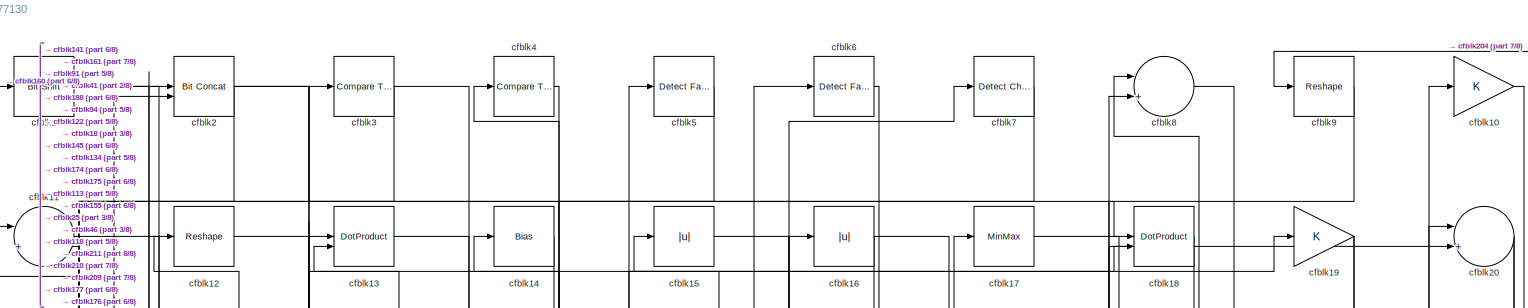
[diagram: root canvas - part 1/8, full width, top band]
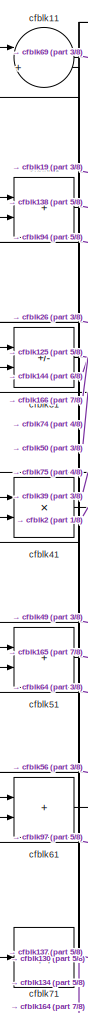
[diagram: root canvas - part 2/8, top left region]
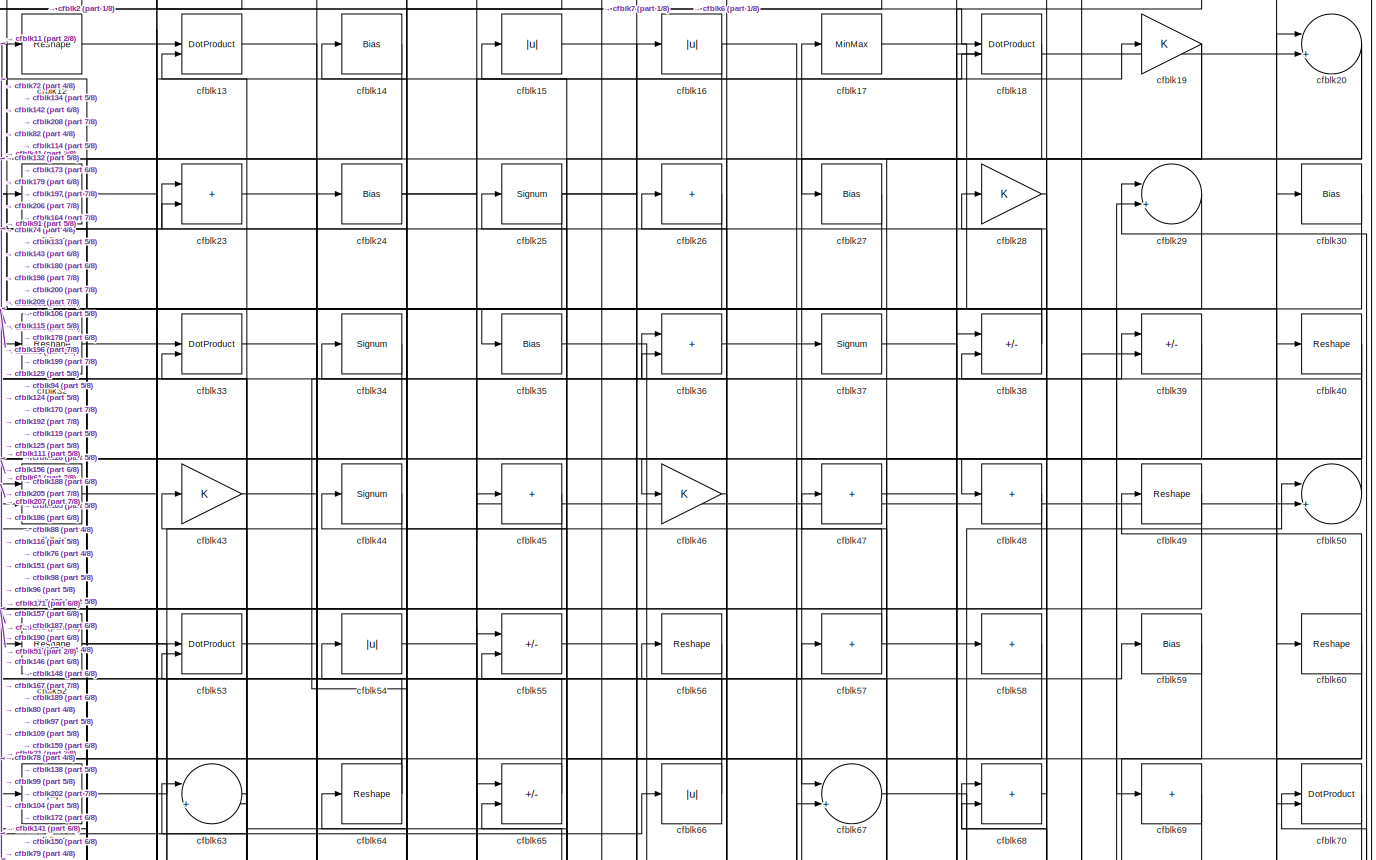
[diagram: root canvas - part 3/8, full width, top band]
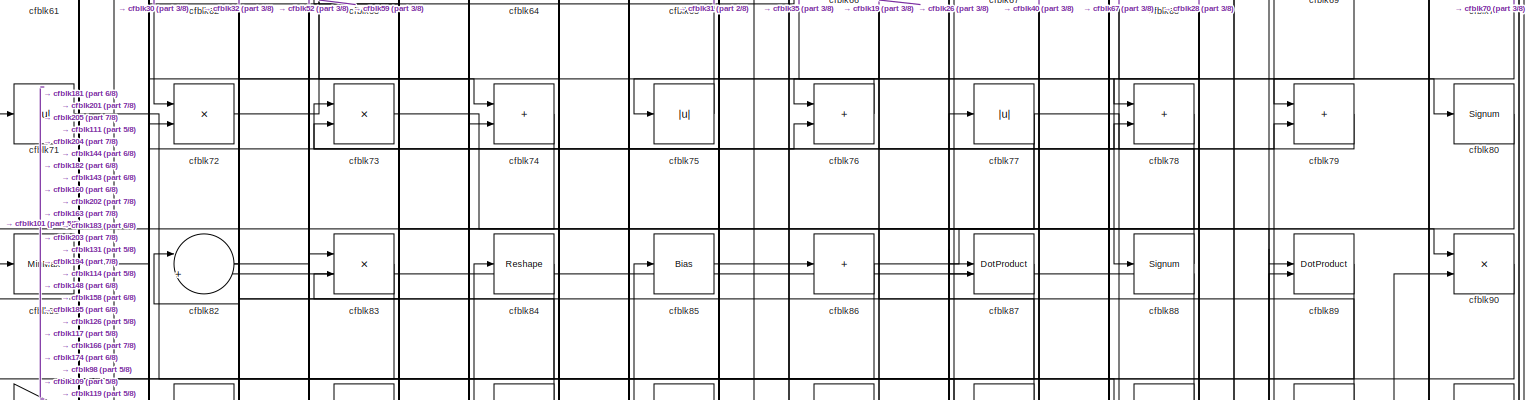
[diagram: root canvas - part 4/8, full width, middle band]
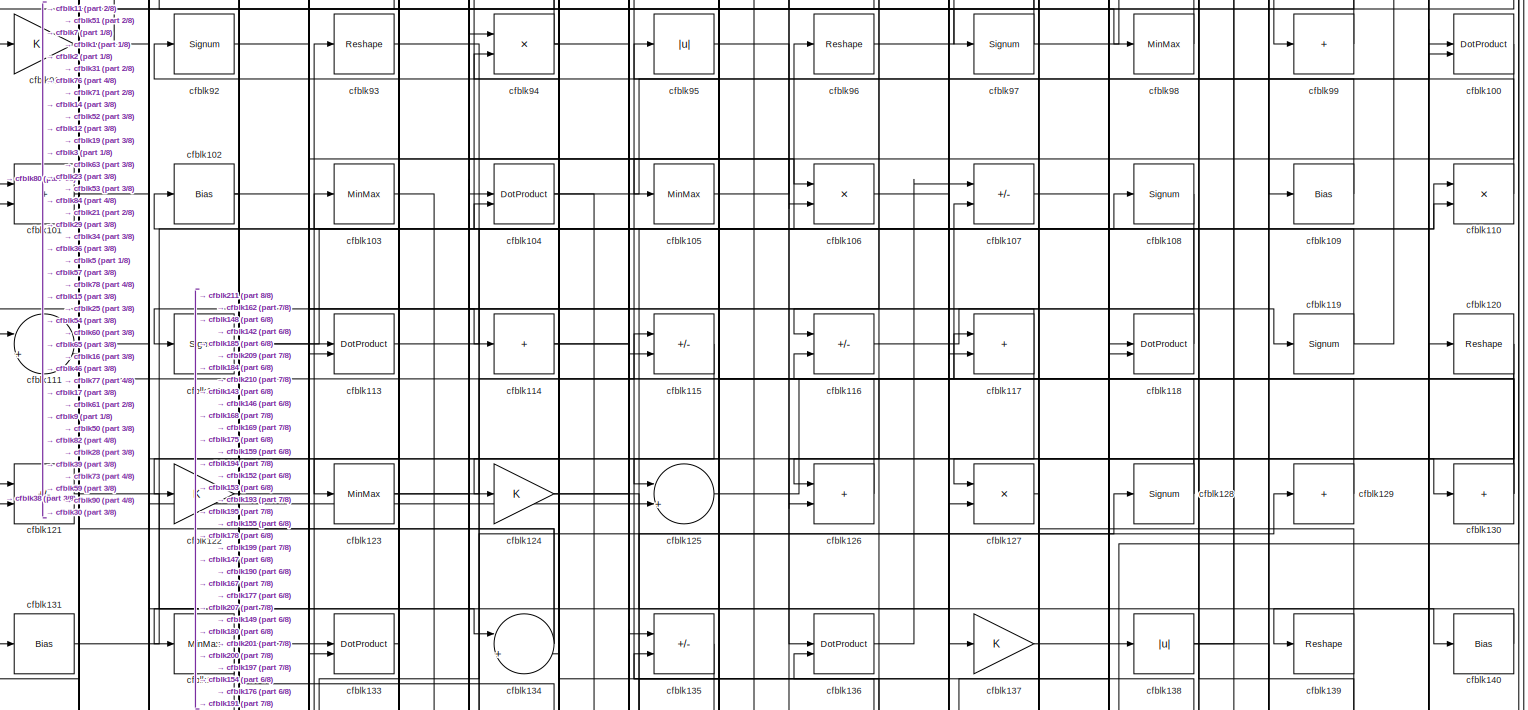
[diagram: root canvas - part 5/8, full width, middle band]
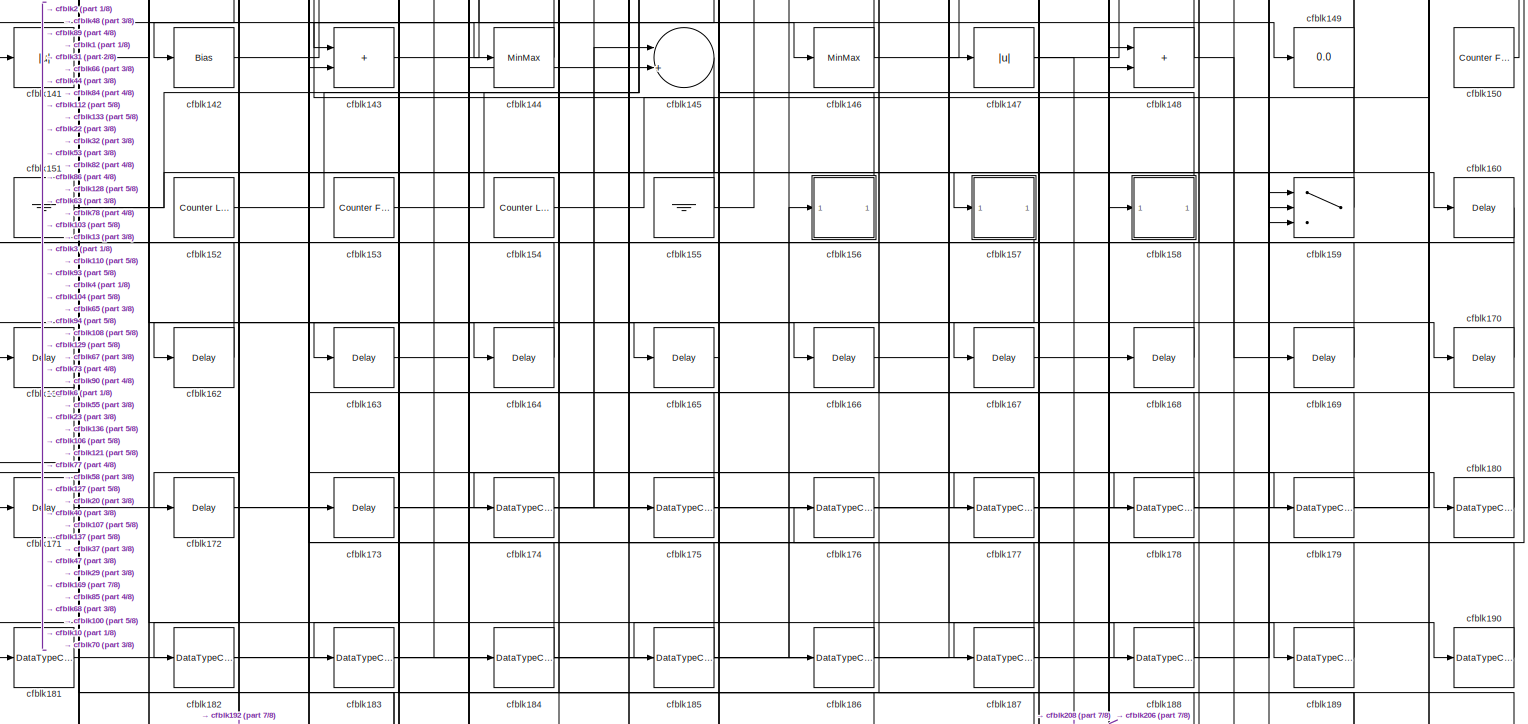
[diagram: root canvas - part 6/8, full width, bottom band]
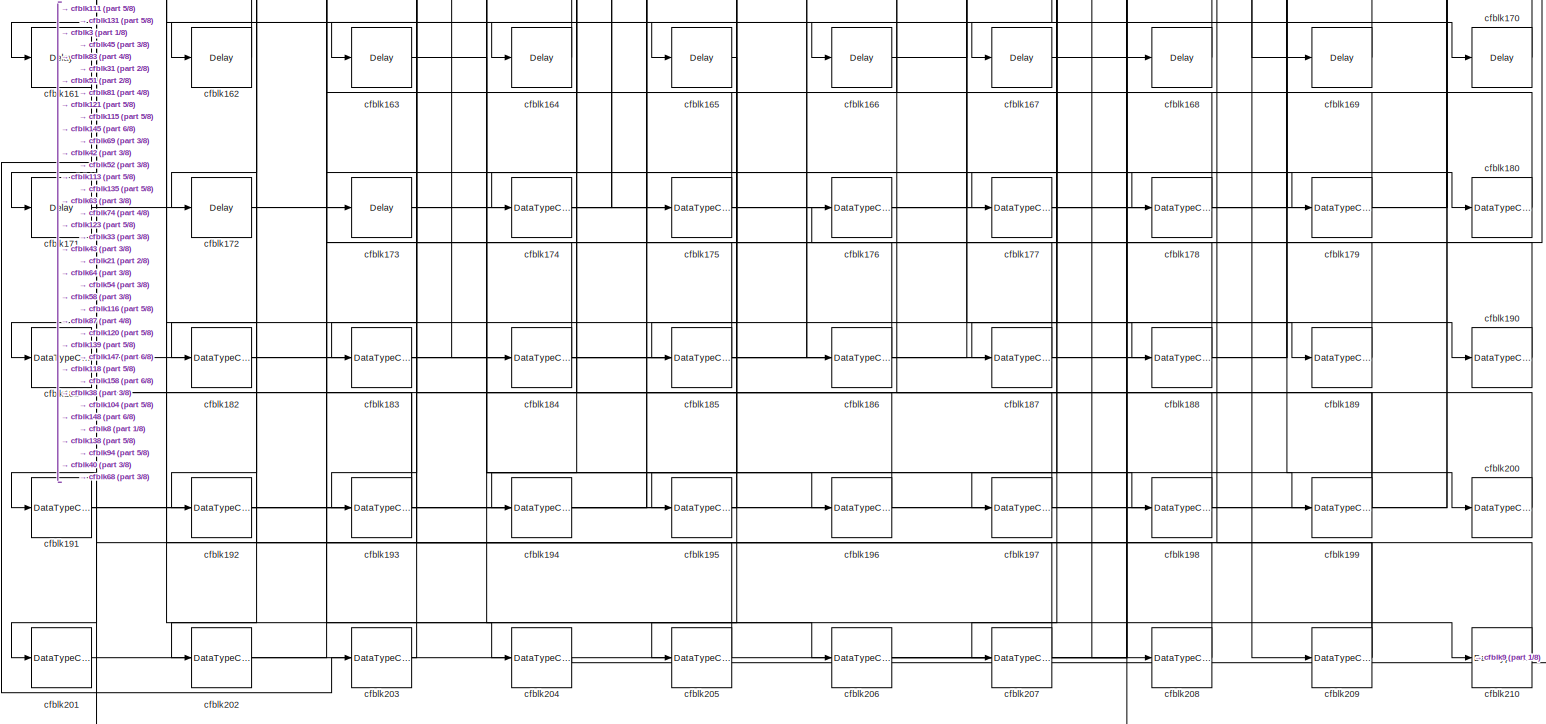
[diagram: root canvas - part 7/8, full width, bottom band]
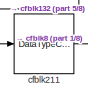
[diagram: root canvas - part 8/8, bottom left region]
MODEL slx_6de214077130
KIND model
CONFIG AbsTol = auto
CONFIG EnableMultiTasking = off
CONFIG FixedStep = auto
CONFIG MaxStep = auto
CONFIG MinStep = auto
CONFIG RelTol = 1e-3
CONFIG SampleTimeConstraint = Unconstrained
CONFIG SolverName = VariableStepAuto
CONFIG StartTime = 0.0
CONFIG StopTime = 10.0
BLOCK [Reference] cfblk1  REF=hdlsllib/Logic and Bit
Operations/Bit Shift
  SourceBlock = hdlsllib/Logic and Bit\nOperations/Bit Shift
  SourceType = Bit Shift
BLOCK [Gain] cfblk10
BLOCK [DotProduct] cfblk100
  OutDataTypeStr = Inherit: Inherit via internal rule
BLOCK [Sum] cfblk101
  IconShape = rectangular
BLOCK [Bias] cfblk102
  Bias = 0.0
  SaturateOnIntegerOverflow = off
BLOCK [MinMax] cfblk103
BLOCK [DotProduct] cfblk104
  OutDataTypeStr = Inherit: Inherit via internal rule
BLOCK [MinMax] cfblk105
BLOCK [Product] cfblk106
  Inputs = */
  RndMeth = Zero
  SaturateOnIntegerOverflow = on
BLOCK [Sum] cfblk107
  IconShape = rectangular
  Inputs = +-
BLOCK [Signum] cfblk108
BLOCK [Bias] cfblk109
  Bias = 0.0
  SaturateOnIntegerOverflow = off
BLOCK [Sum] cfblk11
  Inputs = |++
BLOCK [Product] cfblk110
  Inputs = */
  RndMeth = Zero
  SaturateOnIntegerOverflow = on
BLOCK [Sum] cfblk111
  Inputs = |++
BLOCK [Signum] cfblk112
BLOCK [DotProduct] cfblk113
  OutDataTypeStr = Inherit: Inherit via internal rule
BLOCK [Sum] cfblk114
  IconShape = rectangular
  Inputs = +
BLOCK [Sum] cfblk115
  IconShape = rectangular
  Inputs = +-
BLOCK [Sum] cfblk116
  IconShape = rectangular
  Inputs = +-
BLOCK [Sum] cfblk117
  IconShape = rectangular
BLOCK [DotProduct] cfblk118
  OutDataTypeStr = Inherit: Inherit via internal rule
BLOCK [Signum] cfblk119
BLOCK [Reshape] cfblk12
BLOCK [Reshape] cfblk120
BLOCK [Sum] cfblk121
  IconShape = rectangular
  Inputs = +-
BLOCK [Gain] cfblk122
BLOCK [MinMax] cfblk123
BLOCK [Gain] cfblk124
BLOCK [Sum] cfblk125
  Inputs = |++
BLOCK [Sum] cfblk126
  IconShape = rectangular
BLOCK [Product] cfblk127
  Inputs = */
  RndMeth = Zero
  SaturateOnIntegerOverflow = on
BLOCK [Signum] cfblk128
BLOCK [Sum] cfblk129
  IconShape = rectangular
  Inputs = +
BLOCK [DotProduct] cfblk13
  OutDataTypeStr = Inherit: Inherit via internal rule
BLOCK [Sum] cfblk130
  IconShape = rectangular
  Inputs = +
BLOCK [Bias] cfblk131
  Bias = 0.0
  SaturateOnIntegerOverflow = off
BLOCK [MinMax] cfblk132
BLOCK [DotProduct] cfblk133
  OutDataTypeStr = Inherit: Inherit via internal rule
BLOCK [Sum] cfblk134
  Inputs = |++
BLOCK [Sum] cfblk135
  IconShape = rectangular
  Inputs = +-
BLOCK [DotProduct] cfblk136
  OutDataTypeStr = Inherit: Inherit via internal rule
BLOCK [Gain] cfblk137
BLOCK [Abs] cfblk138
  SaturateOnIntegerOverflow = off
BLOCK [Reshape] cfblk139
BLOCK [Bias] cfblk14
  Bias = 0.0
  SaturateOnIntegerOverflow = off
BLOCK [Bias] cfblk140
  Bias = 0.0
  SaturateOnIntegerOverflow = off
BLOCK [Abs] cfblk141
  SaturateOnIntegerOverflow = off
BLOCK [Bias] cfblk142
  Bias = 0.0
  SaturateOnIntegerOverflow = off
BLOCK [Sum] cfblk143
  IconShape = rectangular
BLOCK [MinMax] cfblk144
BLOCK [Sum] cfblk145
  Inputs = |++
BLOCK [MinMax] cfblk146
BLOCK [Abs] cfblk147
  SaturateOnIntegerOverflow = off
BLOCK [Sum] cfblk148
  IconShape = rectangular
BLOCK [Display] cfblk149
  Decimation = 1
BLOCK [Abs] cfblk15
  SaturateOnIntegerOverflow = off
BLOCK [Reference] cfblk150  REF=hdlsllib/Sources/Counter
Free-Running
  SourceBlock = hdlsllib/Sources/Counter\nFree-Running
  SourceType = Counter Free-Running
BLOCK [Ground] cfblk151
BLOCK [Reference] cfblk152  REF=hdlsllib/Sources/Counter
Limited
  SourceBlock = hdlsllib/Sources/Counter\nLimited
  SourceType = Counter Limited
BLOCK [Reference] cfblk153  REF=hdlsllib/Sources/Counter
Free-Running
  SourceBlock = hdlsllib/Sources/Counter\nFree-Running
  SourceType = Counter Free-Running
BLOCK [Reference] cfblk154  REF=hdlsllib/Sources/Counter
Limited
  SourceBlock = hdlsllib/Sources/Counter\nLimited
  SourceType = Counter Limited
BLOCK [Ground] cfblk155
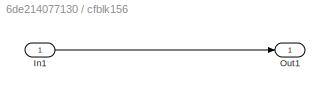
BLOCK [SubSystem] cfblk156
  LibrarySourceBlock = hdlsllib/Ports &\nSubsystems/Subsystem
BLOCK [Inport] cfblk156/In1
BLOCK [Outport] cfblk156/Out1
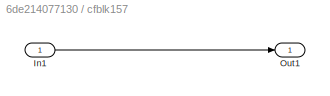
BLOCK [SubSystem] cfblk157
  LibrarySourceBlock = hdlsllib/Ports &\nSubsystems/Subsystem
BLOCK [Inport] cfblk157/In1
BLOCK [Outport] cfblk157/Out1
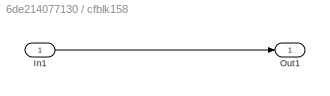
BLOCK [SubSystem] cfblk158
  LibrarySourceBlock = hdlsllib/Ports &\nSubsystems/Subsystem
BLOCK [Inport] cfblk158/In1
BLOCK [Outport] cfblk158/Out1
BLOCK [Switch] cfblk159
  InputSameDT = off
  SaturateOnIntegerOverflow = off
BLOCK [Abs] cfblk16
  SaturateOnIntegerOverflow = off
BLOCK [Delay] cfblk160
  InputPortMap = u0
  SampleTime = 1
BLOCK [Delay] cfblk161
  InputPortMap = u0
  SampleTime = 1
BLOCK [Delay] cfblk162
  InputPortMap = u0
  SampleTime = 1
BLOCK [Delay] cfblk163
  InputPortMap = u0
  SampleTime = 1
BLOCK [Delay] cfblk164
  InputPortMap = u0
  SampleTime = 1
BLOCK [Delay] cfblk165
  InputPortMap = u0
  SampleTime = 1
BLOCK [Delay] cfblk166
  InputPortMap = u0
  SampleTime = 1
BLOCK [Delay] cfblk167
  InputPortMap = u0
  SampleTime = 1
BLOCK [Delay] cfblk168
  InputPortMap = u0
  SampleTime = 1
BLOCK [Delay] cfblk169
  InputPortMap = u0
  SampleTime = 1
BLOCK [MinMax] cfblk17
BLOCK [Delay] cfblk170
  InputPortMap = u0
  SampleTime = 1
BLOCK [Delay] cfblk171
  InputPortMap = u0
  SampleTime = 1
BLOCK [Delay] cfblk172
  InputPortMap = u0
  SampleTime = 1
BLOCK [Delay] cfblk173
  InputPortMap = u0
  SampleTime = 1
BLOCK [DataTypeConversion] cfblk174
  RndMeth = Floor
  SaturateOnIntegerOverflow = off
BLOCK [DataTypeConversion] cfblk175
  OutDataTypeStr = uint8
  RndMeth = Floor
  SaturateOnIntegerOverflow = off
BLOCK [DataTypeConversion] cfblk176
  OutDataTypeStr = uint8
  RndMeth = Floor
  SaturateOnIntegerOverflow = off
BLOCK [DataTypeConversion] cfblk177
  OutDataTypeStr = uint8
  RndMeth = Floor
  SaturateOnIntegerOverflow = off
BLOCK [DataTypeConversion] cfblk178
  OutDataTypeStr = uint8
  RndMeth = Floor
  SaturateOnIntegerOverflow = off
BLOCK [DataTypeConversion] cfblk179
  OutDataTypeStr = uint8
  RndMeth = Floor
  SaturateOnIntegerOverflow = off
BLOCK [DotProduct] cfblk18
  OutDataTypeStr = Inherit: Inherit via internal rule
BLOCK [DataTypeConversion] cfblk180
  OutDataTypeStr = uint8
  RndMeth = Floor
  SaturateOnIntegerOverflow = off
BLOCK [DataTypeConversion] cfblk181
  OutDataTypeStr = uint8
  RndMeth = Floor
  SaturateOnIntegerOverflow = off
BLOCK [DataTypeConversion] cfblk182
  OutDataTypeStr = uint8
  RndMeth = Floor
  SaturateOnIntegerOverflow = off
BLOCK [DataTypeConversion] cfblk183
  OutDataTypeStr = uint8
  RndMeth = Floor
  SaturateOnIntegerOverflow = off
BLOCK [DataTypeConversion] cfblk184
  RndMeth = Floor
  SaturateOnIntegerOverflow = off
BLOCK [DataTypeConversion] cfblk185
  OutDataTypeStr = uint8
  RndMeth = Floor
  SaturateOnIntegerOverflow = off
BLOCK [DataTypeConversion] cfblk186
  OutDataTypeStr = uint8
  RndMeth = Floor
  SaturateOnIntegerOverflow = off
BLOCK [DataTypeConversion] cfblk187
  OutDataTypeStr = uint8
  RndMeth = Floor
  SaturateOnIntegerOverflow = off
BLOCK [DataTypeConversion] cfblk188
  OutDataTypeStr = uint8
  RndMeth = Floor
  SaturateOnIntegerOverflow = off
BLOCK [DataTypeConversion] cfblk189
  OutDataTypeStr = uint8
  RndMeth = Floor
  SaturateOnIntegerOverflow = off
BLOCK [Gain] cfblk19
BLOCK [DataTypeConversion] cfblk190
  OutDataTypeStr = uint8
  RndMeth = Floor
  SaturateOnIntegerOverflow = off
BLOCK [DataTypeConversion] cfblk191
  RndMeth = Floor
  SaturateOnIntegerOverflow = off
BLOCK [DataTypeConversion] cfblk192
  OutDataTypeStr = uint8
  RndMeth = Floor
  SaturateOnIntegerOverflow = off
BLOCK [DataTypeConversion] cfblk193
  RndMeth = Floor
  SaturateOnIntegerOverflow = off
BLOCK [DataTypeConversion] cfblk194
  OutDataTypeStr = uint8
  RndMeth = Floor
  SaturateOnIntegerOverflow = off
BLOCK [DataTypeConversion] cfblk195
  OutDataTypeStr = uint8
  RndMeth = Floor
  SaturateOnIntegerOverflow = off
BLOCK [DataTypeConversion] cfblk196
  OutDataTypeStr = uint8
  RndMeth = Floor
  SaturateOnIntegerOverflow = off
BLOCK [DataTypeConversion] cfblk197
  OutDataTypeStr = uint8
  RndMeth = Floor
  SaturateOnIntegerOverflow = off
BLOCK [DataTypeConversion] cfblk198
  OutDataTypeStr = uint8
  RndMeth = Floor
  SaturateOnIntegerOverflow = off
BLOCK [DataTypeConversion] cfblk199
  RndMeth = Floor
  SaturateOnIntegerOverflow = off
BLOCK [Reference] cfblk2  REF=hdlsllib/Logic and Bit
Operations/Bit Concat
  SourceBlock = hdlsllib/Logic and Bit\nOperations/Bit Concat
  SourceType = Bit Concat
BLOCK [Sum] cfblk20
  Inputs = |++
BLOCK [DataTypeConversion] cfblk200
  OutDataTypeStr = uint8
  RndMeth = Floor
  SaturateOnIntegerOverflow = off
BLOCK [DataTypeConversion] cfblk201
  OutDataTypeStr = uint8
  RndMeth = Floor
  SaturateOnIntegerOverflow = off
BLOCK [DataTypeConversion] cfblk202
  OutDataTypeStr = uint8
  RndMeth = Floor
  SaturateOnIntegerOverflow = off
BLOCK [DataTypeConversion] cfblk203
  OutDataTypeStr = uint8
  RndMeth = Floor
  SaturateOnIntegerOverflow = off
BLOCK [DataTypeConversion] cfblk204
  OutDataTypeStr = uint8
  RndMeth = Floor
  SaturateOnIntegerOverflow = off
BLOCK [DataTypeConversion] cfblk205
  OutDataTypeStr = uint8
  RndMeth = Floor
  SaturateOnIntegerOverflow = off
BLOCK [DataTypeConversion] cfblk206
  RndMeth = Floor
  SaturateOnIntegerOverflow = off
BLOCK [DataTypeConversion] cfblk207
  OutDataTypeStr = uint8
  RndMeth = Floor
  SaturateOnIntegerOverflow = off
BLOCK [DataTypeConversion] cfblk208
  OutDataTypeStr = uint8
  RndMeth = Floor
  SaturateOnIntegerOverflow = off
BLOCK [DataTypeConversion] cfblk209
  RndMeth = Floor
  SaturateOnIntegerOverflow = off
BLOCK [Sum] cfblk21
  IconShape = rectangular
BLOCK [DataTypeConversion] cfblk210
  OutDataTypeStr = uint8
  RndMeth = Floor
  SaturateOnIntegerOverflow = off
BLOCK [DataTypeConversion] cfblk211
  OutDataTypeStr = uint8
  RndMeth = Floor
  SaturateOnIntegerOverflow = off
BLOCK [MinMax] cfblk22
BLOCK [Sum] cfblk23
  IconShape = rectangular
BLOCK [Bias] cfblk24
  Bias = 0.0
  SaturateOnIntegerOverflow = off
BLOCK [Signum] cfblk25
BLOCK [Sum] cfblk26
  IconShape = rectangular
  Inputs = +
BLOCK [Bias] cfblk27
  Bias = 0.0
  SaturateOnIntegerOverflow = off
BLOCK [Gain] cfblk28
BLOCK [Sum] cfblk29
  Inputs = |++
BLOCK [Reference] cfblk3  REF=hdlsllib/Logic and Bit
Operations/Compare
To Constant
  SourceBlock = hdlsllib/Logic and Bit\nOperations/Compare\nTo Constant
  SourceType = Compare To Constant
BLOCK [Bias] cfblk30
  Bias = 0.0
  SaturateOnIntegerOverflow = off
BLOCK [Sum] cfblk31
  IconShape = rectangular
  Inputs = +-
BLOCK [Reshape] cfblk32
BLOCK [DotProduct] cfblk33
  OutDataTypeStr = Inherit: Inherit via internal rule
BLOCK [Signum] cfblk34
BLOCK [Bias] cfblk35
  Bias = 0.0
  SaturateOnIntegerOverflow = off
BLOCK [Sum] cfblk36
  IconShape = rectangular
BLOCK [Signum] cfblk37
BLOCK [Sum] cfblk38
  IconShape = rectangular
  Inputs = +-
BLOCK [Sum] cfblk39
  IconShape = rectangular
  Inputs = +-
BLOCK [Reference] cfblk4  REF=hdlsllib/Logic and Bit
Operations/Compare
To Constant
  SourceBlock = hdlsllib/Logic and Bit\nOperations/Compare\nTo Constant
  SourceType = Compare To Constant
BLOCK [Reshape] cfblk40
BLOCK [Product] cfblk41
  Inputs = */
  RndMeth = Zero
  SaturateOnIntegerOverflow = on
BLOCK [Product] cfblk42
  Inputs = */
  RndMeth = Zero
  SaturateOnIntegerOverflow = on
BLOCK [Gain] cfblk43
BLOCK [Signum] cfblk44
BLOCK [Sum] cfblk45
  IconShape = rectangular
  Inputs = +
BLOCK [Gain] cfblk46
BLOCK [Sum] cfblk47
  IconShape = rectangular
  Inputs = +
BLOCK [Sum] cfblk48
  IconShape = rectangular
  Inputs = +
BLOCK [Reshape] cfblk49
BLOCK [Reference] cfblk5  REF=hdlsllib/Logic and Bit
Operations/Detect Fall
Nonpositive
  SourceBlock = hdlsllib/Logic and Bit\nOperations/Detect Fall\nNonpositive
  SourceType = Detect Fall Nonpositive
BLOCK [Sum] cfblk50
  Inputs = |++
BLOCK [Sum] cfblk51
  IconShape = rectangular
BLOCK [Reshape] cfblk52
BLOCK [DotProduct] cfblk53
  OutDataTypeStr = Inherit: Inherit via internal rule
BLOCK [Abs] cfblk54
  SaturateOnIntegerOverflow = off
BLOCK [Sum] cfblk55
  IconShape = rectangular
  Inputs = +-
BLOCK [Reshape] cfblk56
BLOCK [Sum] cfblk57
  IconShape = rectangular
  Inputs = +
BLOCK [Sum] cfblk58
  IconShape = rectangular
  Inputs = +
BLOCK [Bias] cfblk59
  Bias = 0.0
  SaturateOnIntegerOverflow = off
BLOCK [Reference] cfblk6  REF=hdlsllib/Logic and Bit
Operations/Detect Fall
Nonpositive
  SourceBlock = hdlsllib/Logic and Bit\nOperations/Detect Fall\nNonpositive
  SourceType = Detect Fall Nonpositive
BLOCK [Reshape] cfblk60
BLOCK [Sum] cfblk61
  IconShape = rectangular
BLOCK [Abs] cfblk62
  SaturateOnIntegerOverflow = off
BLOCK [Sum] cfblk63
  Inputs = |++
BLOCK [Reshape] cfblk64
BLOCK [Sum] cfblk65
  IconShape = rectangular
  Inputs = +-
BLOCK [Abs] cfblk66
  SaturateOnIntegerOverflow = off
BLOCK [Sum] cfblk67
  Inputs = |++
BLOCK [Sum] cfblk68
  IconShape = rectangular
BLOCK [Sum] cfblk69
  IconShape = rectangular
  Inputs = +
BLOCK [Reference] cfblk7  REF=simulink/Logic and Bit
Operations/Detect
Change
  LibrarySourceBlock = hdlsllib/Logic and Bit\nOperations/Detect\nChange
  SourceBlock = simulink/Logic and Bit\nOperations/Detect\nChange
  SourceType = Detect Change
BLOCK [DotProduct] cfblk70
  OutDataTypeStr = Inherit: Inherit via internal rule
BLOCK [Abs] cfblk71
  SaturateOnIntegerOverflow = off
BLOCK [Product] cfblk72
  Inputs = */
  RndMeth = Zero
  SaturateOnIntegerOverflow = on
BLOCK [Product] cfblk73
  Inputs = */
  RndMeth = Zero
  SaturateOnIntegerOverflow = on
BLOCK [Sum] cfblk74
  IconShape = rectangular
BLOCK [Abs] cfblk75
  SaturateOnIntegerOverflow = off
BLOCK [Sum] cfblk76
  IconShape = rectangular
BLOCK [Abs] cfblk77
  SaturateOnIntegerOverflow = off
BLOCK [Sum] cfblk78
  IconShape = rectangular
BLOCK [Sum] cfblk79
  IconShape = rectangular
BLOCK [Sum] cfblk8
  Inputs = |++
BLOCK [Signum] cfblk80
BLOCK [MinMax] cfblk81
BLOCK [Sum] cfblk82
  Inputs = |++
BLOCK [Product] cfblk83
  Inputs = */
  RndMeth = Zero
  SaturateOnIntegerOverflow = on
BLOCK [Reshape] cfblk84
BLOCK [Bias] cfblk85
  Bias = 0.0
  SaturateOnIntegerOverflow = off
BLOCK [Sum] cfblk86
  IconShape = rectangular
  Inputs = +
BLOCK [DotProduct] cfblk87
  OutDataTypeStr = Inherit: Inherit via internal rule
BLOCK [Signum] cfblk88
BLOCK [DotProduct] cfblk89
  OutDataTypeStr = Inherit: Inherit via internal rule
BLOCK [Reshape] cfblk9
BLOCK [Product] cfblk90
  Inputs = */
  RndMeth = Zero
  SaturateOnIntegerOverflow = on
BLOCK [Gain] cfblk91
BLOCK [Signum] cfblk92
BLOCK [Reshape] cfblk93
BLOCK [Product] cfblk94
  Inputs = */
  RndMeth = Zero
  SaturateOnIntegerOverflow = on
BLOCK [Abs] cfblk95
  SaturateOnIntegerOverflow = off
BLOCK [Reshape] cfblk96
BLOCK [Signum] cfblk97
BLOCK [MinMax] cfblk98
BLOCK [Sum] cfblk99
  IconShape = rectangular
  Inputs = +
LINE cfblk100:1 -> cfblk123:1
LINE cfblk101:1 -> cfblk134:1
NET cfblk102:1 -> cfblk110:2, cfblk122:1
LINE cfblk103:1 -> cfblk184:1
NET cfblk104:1 -> cfblk175:1, cfblk30:1
LINE cfblk105:1 -> cfblk16:1
LINE cfblk106:1 -> cfblk190:1
LINE cfblk107:1 -> cfblk149:1
LINE cfblk108:1 -> cfblk133:2
LINE cfblk109:1 -> cfblk28:1
LINE cfblk10:1 -> cfblk176:1
LINE cfblk110:1 -> cfblk92:1
LINE cfblk111:1 -> cfblk76:2
NET cfblk112:1 -> cfblk148:2, cfblk96:1
LINE cfblk113:1 -> cfblk5:1
NET cfblk114:1 -> cfblk39:1, cfblk78:2
LINE cfblk115:1 -> cfblk162:1
LINE cfblk116:1 -> cfblk119:1
NET cfblk117:1 -> cfblk112:1, cfblk126:2
LINE cfblk118:1 -> cfblk102:1
NET cfblk119:1 -> cfblk65:2, cfblk90:2
LINE cfblk11:1 -> cfblk69:1
NET cfblk120:1 -> cfblk167:1, cfblk207:1
LINE cfblk121:1 -> cfblk147:1
LINE cfblk122:1 -> cfblk3:1
NET cfblk123:1 -> cfblk115:1, cfblk210:1
NET cfblk124:1 -> cfblk140:1, cfblk57:1
LINE cfblk125:1 -> cfblk107:2
LINE cfblk126:1 -> cfblk25:1
LINE cfblk127:1 -> cfblk177:1
NET cfblk128:1 -> cfblk127:1, cfblk95:1
LINE cfblk129:1 -> cfblk34:1
LINE cfblk12:1 -> cfblk114:1
NET cfblk130:1 -> cfblk11:2, cfblk15:1, cfblk54:1
LINE cfblk131:1 -> cfblk84:1
NET cfblk132:1 -> cfblk19:1, cfblk211:1
LINE cfblk133:1 -> cfblk63:1
NET cfblk134:1 -> cfblk51:2, cfblk52:1
LINE cfblk135:1 -> cfblk193:1
LINE cfblk136:1 -> cfblk107:1
LINE cfblk137:1 -> cfblk180:1
NET cfblk138:1 -> cfblk200:1, cfblk39:2
NET cfblk139:1 -> cfblk117:1, cfblk197:1
LINE cfblk13:1 -> cfblk178:1
LINE cfblk140:1 -> cfblk139:1
LINE cfblk141:1 -> cfblk66:1
LINE cfblk142:1 -> cfblk128:1
LINE cfblk143:1 -> cfblk110:1
LINE cfblk144:1 -> cfblk82:1
LINE cfblk145:1 -> cfblk192:1
NET cfblk146:1 -> cfblk23:2, cfblk58:1
NET cfblk147:1 -> cfblk208:1, cfblk29:1
NET cfblk148:1 -> cfblk169:1, cfblk85:1
LINE cfblk14:1 -> cfblk132:1
LINE cfblk150:1 -> cfblk70:1
NET cfblk151:1 -> cfblk159:2, cfblk67:2
LINE cfblk152:1 -> cfblk129:1
LINE cfblk153:1 -> cfblk108:1
LINE cfblk154:1 -> cfblk100:2
NET cfblk155:1 -> cfblk6:1, cfblk93:1
LINE cfblk156/In1:1 -> cfblk156/Out1:1
LINE cfblk156:1 -> cfblk44:1
LINE cfblk157/In1:1 -> cfblk157/Out1:1
LINE cfblk157:1 -> cfblk172:1
LINE cfblk158/In1:1 -> cfblk158/Out1:1
LINE cfblk158:1 -> cfblk73:1
LINE cfblk159:1 -> cfblk68:1
LINE cfblk15:1 -> cfblk67:1
LINE cfblk160:1 -> cfblk1:1
LINE cfblk161:1 -> cfblk203:1
LINE cfblk162:1 -> cfblk121:1
LINE cfblk163:1 -> cfblk198:1
LINE cfblk164:1 -> cfblk21:2
LINE cfblk165:1 -> cfblk195:1
LINE cfblk166:1 -> cfblk87:1
LINE cfblk167:1 -> cfblk38:1
LINE cfblk168:1 -> cfblk104:2
LINE cfblk169:1 -> cfblk94:2
NET cfblk16:1 -> cfblk125:1, cfblk37:1
LINE cfblk170:1 -> cfblk68:2
LINE cfblk171:1 -> cfblk29:2
LINE cfblk172:1 -> cfblk20:1
LINE cfblk173:1 -> cfblk65:1
NET cfblk174:1 -> cfblk145:1, cfblk159:1, cfblk77:1
LINE cfblk175:1 -> cfblk4:1
LINE cfblk176:1 -> cfblk100:1
LINE cfblk177:1 -> cfblk10:1
LINE cfblk178:1 -> cfblk136:2
LINE cfblk179:1 -> cfblk13:1
LINE cfblk17:1 -> cfblk60:1
LINE cfblk180:1 -> cfblk13:2
LINE cfblk181:1 -> cfblk156:1
LINE cfblk182:1 -> cfblk89:1
LINE cfblk183:1 -> cfblk89:2
NET cfblk184:1 -> cfblk127:2, cfblk133:1
LINE cfblk185:1 -> cfblk103:1
LINE cfblk186:1 -> cfblk53:1
LINE cfblk187:1 -> cfblk55:1
LINE cfblk188:1 -> cfblk55:2
LINE cfblk189:1 -> cfblk53:2
LINE cfblk18:1 -> cfblk27:1
LINE cfblk190:1 -> cfblk47:1
NET cfblk191:1 -> cfblk120:1, cfblk40:1
LINE cfblk192:1 -> cfblk45:1
NET cfblk193:1 -> cfblk111:2, cfblk131:1
LINE cfblk194:1 -> cfblk135:1
LINE cfblk195:1 -> cfblk135:2
LINE cfblk196:1 -> cfblk64:1
LINE cfblk197:1 -> cfblk33:1
LINE cfblk198:1 -> cfblk33:2
NET cfblk199:1 -> cfblk104:1, cfblk116:2
NET cfblk19:1 -> cfblk41:1, cfblk76:1
NET cfblk1:1 -> cfblk188:1, cfblk94:1
LINE cfblk200:1 -> cfblk43:1
LINE cfblk201:1 -> cfblk118:1
LINE cfblk202:1 -> cfblk83:1
LINE cfblk203:1 -> cfblk83:2
LINE cfblk204:1 -> cfblk9:1
LINE cfblk205:1 -> cfblk81:1
NET cfblk206:1 -> cfblk158:1, cfblk168:1
LINE cfblk207:1 -> cfblk42:1
LINE cfblk208:1 -> cfblk42:2
NET cfblk209:1 -> cfblk113:1, cfblk63:2
NET cfblk20:1 -> cfblk157:1, cfblk48:1
LINE cfblk210:1 -> cfblk8:1
LINE cfblk211:1 -> cfblk8:2
LINE cfblk21:1 -> cfblk138:1
LINE cfblk22:1 -> cfblk173:1
LINE cfblk23:1 -> cfblk106:2
NET cfblk24:1 -> cfblk18:2, cfblk50:2
NET cfblk25:1 -> cfblk101:2, cfblk7:1, cfblk97:1
LINE cfblk26:1 -> cfblk31:2
LINE cfblk27:1 -> cfblk35:1
LINE cfblk28:1 -> cfblk78:1
LINE cfblk29:1 -> cfblk124:1
NET cfblk2:1 -> cfblk113:2, cfblk141:1, cfblk18:1
LINE cfblk30:1 -> cfblk72:1
NET cfblk31:1 -> cfblk125:2, cfblk144:1, cfblk166:1, cfblk74:2
LINE cfblk32:1 -> cfblk179:1
LINE cfblk33:1 -> cfblk196:1
LINE cfblk34:1 -> cfblk111:1
LINE cfblk35:1 -> cfblk88:1
LINE cfblk36:1 -> cfblk98:1
LINE cfblk37:1 -> cfblk148:1
NET cfblk38:1 -> cfblk121:2, cfblk12:1
LINE cfblk39:1 -> cfblk61:1
NET cfblk3:1 -> cfblk145:2, cfblk161:1
NET cfblk40:1 -> cfblk187:1, cfblk72:2, cfblk87:2
LINE cfblk41:1 -> cfblk2:1
LINE cfblk42:1 -> cfblk206:1
LINE cfblk43:1 -> cfblk199:1
LINE cfblk44:1 -> cfblk142:1
LINE cfblk45:1 -> cfblk191:1
LINE cfblk46:1 -> cfblk116:1
LINE cfblk47:1 -> cfblk189:1
LINE cfblk48:1 -> cfblk171:1
LINE cfblk49:1 -> cfblk51:1
LINE cfblk4:1 -> cfblk174:1
LINE cfblk50:1 -> cfblk11:1
LINE cfblk51:1 -> cfblk165:1
NET cfblk52:1 -> cfblk164:1, cfblk74:1
LINE cfblk53:1 -> cfblk115:2
LINE cfblk54:1 -> cfblk170:1
LINE cfblk55:1 -> cfblk186:1
LINE cfblk56:1 -> cfblk71:1
NET cfblk57:1 -> cfblk14:1, cfblk20:2
LINE cfblk58:1 -> cfblk205:1
LINE cfblk59:1 -> cfblk99:1
LINE cfblk5:1 -> cfblk134:2
NET cfblk60:1 -> cfblk105:1, cfblk49:1, cfblk70:2
LINE cfblk61:1 -> cfblk130:1
LINE cfblk62:1 -> cfblk24:1
LINE cfblk63:1 -> cfblk143:1
NET cfblk64:1 -> cfblk41:2, cfblk62:1
LINE cfblk65:1 -> cfblk22:1
LINE cfblk66:1 -> cfblk56:1
LINE cfblk67:1 -> cfblk80:1
LINE cfblk68:1 -> cfblk38:2
LINE cfblk69:1 -> cfblk202:1
LINE cfblk6:1 -> cfblk46:1
LINE cfblk70:1 -> cfblk79:1
LINE cfblk71:1 -> cfblk137:1
LINE cfblk72:1 -> cfblk59:1
LINE cfblk73:1 -> cfblk109:1
LINE cfblk74:1 -> cfblk163:1
LINE cfblk75:1 -> cfblk31:1
LINE cfblk76:1 -> cfblk75:1
NET cfblk77:1 -> cfblk117:2, cfblk126:1, cfblk79:2
LINE cfblk78:1 -> cfblk183:1
LINE cfblk79:1 -> cfblk73:2
LINE cfblk7:1 -> cfblk91:1
LINE cfblk80:1 -> cfblk101:1
LINE cfblk81:1 -> cfblk204:1
NET cfblk82:1 -> cfblk160:1, cfblk32:1
LINE cfblk83:1 -> cfblk201:1
LINE cfblk84:1 -> cfblk182:1
LINE cfblk85:1 -> cfblk86:1
NET cfblk86:1 -> cfblk143:2, cfblk90:1
LINE cfblk87:1 -> cfblk194:1
LINE cfblk88:1 -> cfblk26:1
LINE cfblk89:1 -> cfblk181:1
LINE cfblk8:1 -> cfblk209:1
LINE cfblk90:1 -> cfblk185:1
NET cfblk91:1 -> cfblk23:1, cfblk2:2
LINE cfblk92:1 -> cfblk106:1
LINE cfblk93:1 -> cfblk146:1
NET cfblk94:1 -> cfblk159:3, cfblk21:1, cfblk36:1
LINE cfblk95:1 -> cfblk136:1
LINE cfblk96:1 -> cfblk17:1
NET cfblk97:1 -> cfblk50:1, cfblk61:2
LINE cfblk98:1 -> cfblk82:2
LINE cfblk99:1 -> cfblk36:2
LINE cfblk9:1 -> cfblk118:2
note: NET lines group one-source signal fan-out (src -> all destinations, sorted); 1:1 wires keep LINE
